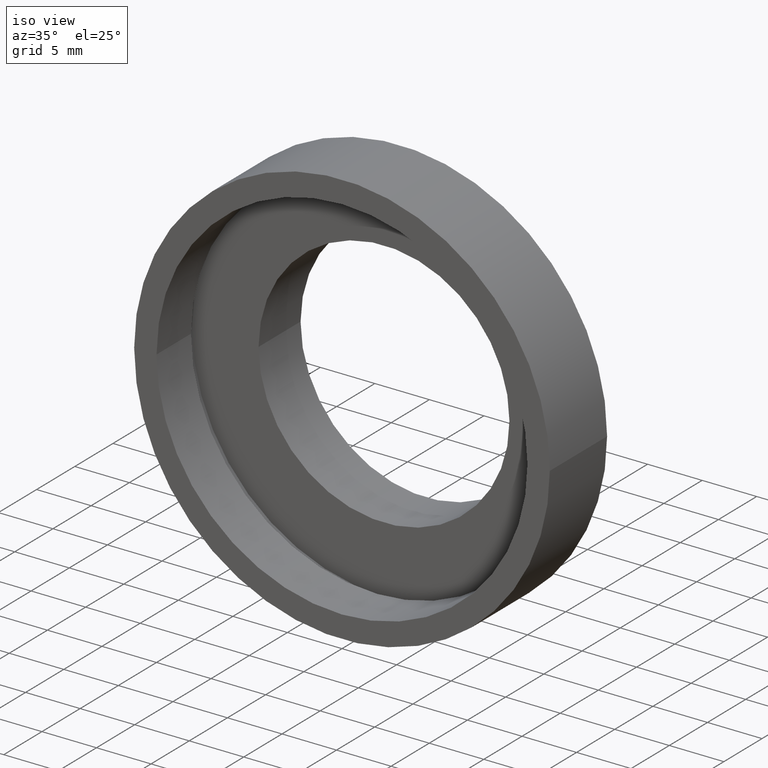
[diagram: clean part render]
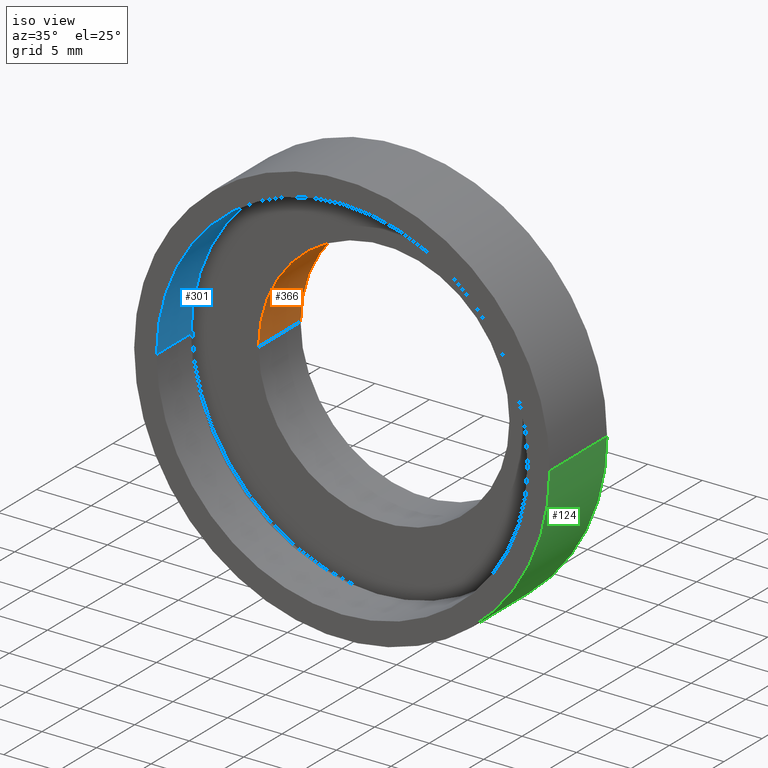
[diagram: same view with three faces highlighted in distinct colors, each labeled with its STEP entity id]
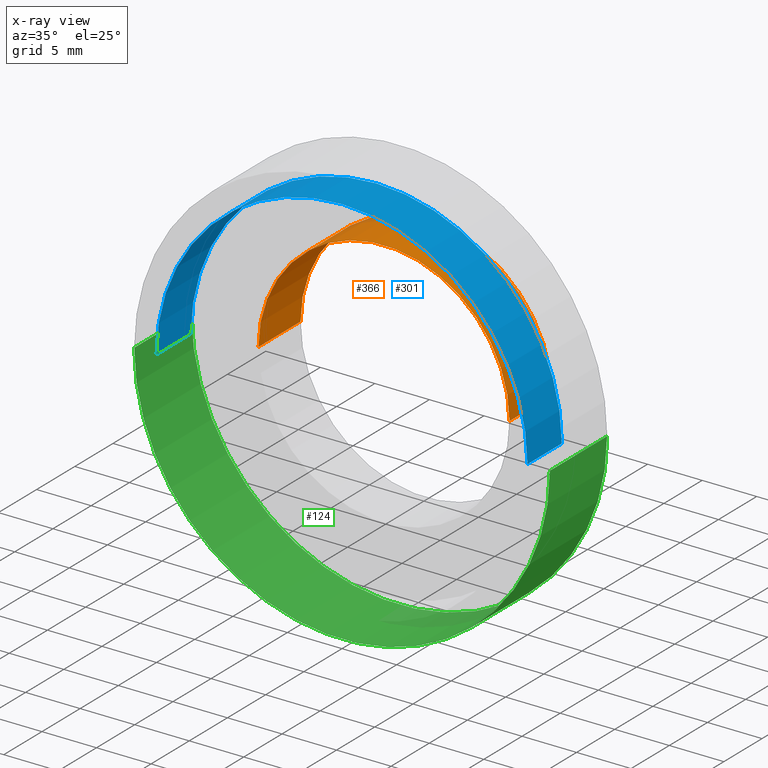
[diagram: x-ray of the same camera — body ghosted, the three highlighted faces saturated]
A machine part, iso view with three faces highlighted in distinct colors.
The next image is the same camera in x-ray (body ghosted, the three faces saturated) — at least one of them is partly hidden behind the body in this view.
Their STEP definitions:

[orange] entity #366 — the highlighted cylindrical surface (partial cylindrical patch) has radius 11.5 mm, axis along (-0, 1, -0).
#19 = VECTOR ( 'NONE', #251, 1000.000000000000000 ) ;
#42 = VERTEX_POINT ( 'NONE', #609 ) ;
#67 = AXIS2_PLACEMENT_3D ( 'NONE', #597, #589, #400 ) ;
#79 = DIRECTION ( 'NONE',  ( -1.224646799147351000E-016, 1.000000000000000000, -0.0000000000000000000 ) ) ;
#80 = EDGE_CURVE ( 'NONE', #42, #178, #607, .T. ) ;
#98 = AXIS2_PLACEMENT_3D ( 'NONE', #149, #526, #569 ) ;
#101 = EDGE_CURVE ( 'NONE', #275, #42, #223, .T. ) ;
#139 = CIRCLE ( 'NONE', #208, 11.50000000000000200 ) ;
#149 = CARTESIAN_POINT ( 'NONE',  ( 1.394385078907593000E-015, 5.499999999999998200, 0.0000000000000000000 ) ) ;
#159 = DIRECTION ( 'NONE',  ( -1.000000000000000000, -1.508455196501571200E-016, 0.0000000000000000000 ) ) ;
#178 = VERTEX_POINT ( 'NONE', #279 ) ;
#201 = ORIENTED_EDGE ( 'NONE', *, *, #101, .F. ) ;
#202 = FACE_OUTER_BOUND ( 'NONE', #448, .T. ) ;
#206 = DIRECTION ( 'NONE',  ( -1.224646799147351000E-016, 1.000000000000000000, -0.0000000000000000000 ) ) ;
#208 = AXIS2_PLACEMENT_3D ( 'NONE', #544, #206, #159 ) ;
#223 = CIRCLE ( 'NONE', #98, 11.50000000000000000 ) ;
#251 = DIRECTION ( 'NONE',  ( -1.224646799147351000E-016, 1.000000000000000000, -0.0000000000000000000 ) ) ;
#265 = LINE ( 'NONE', #502, #19 ) ;
#269 = VERTEX_POINT ( 'NONE', #492 ) ;
#275 = VERTEX_POINT ( 'NONE', #579 ) ;
#279 = CARTESIAN_POINT ( 'NONE',  ( 11.50000000000000200, 10.99999999999999800, 1.408343819019456600E-015 ) ) ;
#296 = ORIENTED_EDGE ( 'NONE', *, *, #80, .F. ) ;
#326 = ORIENTED_EDGE ( 'NONE', *, *, #394, .T. ) ;
#366 = ADVANCED_FACE ( 'NONE', ( #202 ), #451, .F. ) ;
#371 = CARTESIAN_POINT ( 'NONE',  ( 11.50000000000000000, 16.88601823708207700, 1.408343819019456200E-015 ) ) ;
#394 = EDGE_CURVE ( 'NONE', #269, #178, #139, .T. ) ;
#400 = DIRECTION ( 'NONE',  ( -1.000000000000000000, 0.0000000000000000000, 0.0000000000000000000 ) ) ;
#448 = EDGE_LOOP ( 'NONE', ( #296, #201, #582, #326 ) ) ;
#451 = CYLINDRICAL_SURFACE ( 'NONE', #67, 11.50000000000000000 ) ;
#487 = VECTOR ( 'NONE', #79, 1000.000000000000000 ) ;
#492 = CARTESIAN_POINT ( 'NONE',  ( -11.50000000000000200, 10.99999999999999500, 0.0000000000000000000 ) ) ;
#502 = CARTESIAN_POINT ( 'NONE',  ( -11.50000000000000000, 16.88601823708207700, 0.0000000000000000000 ) ) ;
#515 = EDGE_CURVE ( 'NONE', #275, #269, #265, .T. ) ;
#526 = DIRECTION ( 'NONE',  ( -1.224646799147351000E-016, 1.000000000000000000, -0.0000000000000000000 ) ) ;
#544 = CARTESIAN_POINT ( 'NONE',  ( 7.208293393765502500E-016, 10.99999999999999600, 0.0000000000000000000 ) ) ;
#569 = DIRECTION ( 'NONE',  ( -1.000000000000000000, -1.508455196501571400E-016, 0.0000000000000000000 ) ) ;
#579 = CARTESIAN_POINT ( 'NONE',  ( -11.49999999999999800, 5.499999999999996400, 0.0000000000000000000 ) ) ;
#582 = ORIENTED_EDGE ( 'NONE', *, *, #515, .T. ) ;
#589 = DIRECTION ( 'NONE',  ( -1.224646799147351000E-016, 1.000000000000000000, -0.0000000000000000000 ) ) ;
#597 = CARTESIAN_POINT ( 'NONE',  ( 0.0000000000000000000, 16.88601823708207700, 0.0000000000000000000 ) ) ;
#607 = LINE ( 'NONE', #371, #487 ) ;
#609 = CARTESIAN_POINT ( 'NONE',  ( 11.50000000000000200, 5.500000000000000000, 1.408343819019456600E-015 ) ) ;

[blue] entity #301 — the highlighted cylindrical surface (partial cylindrical patch) has radius 17 mm, axis along (-0, 1, -0).
#11 = CYLINDRICAL_SURFACE ( 'NONE', #414, 17.00000000000000000 ) ;
#15 = ORIENTED_EDGE ( 'NONE', *, *, #316, .T. ) ;
#18 = ORIENTED_EDGE ( 'NONE', *, *, #154, .F. ) ;
#94 = CARTESIAN_POINT ( 'NONE',  ( 1.516849758822328100E-015, 4.499999999999999100, 0.0000000000000000000 ) ) ;
#97 = CARTESIAN_POINT ( 'NONE',  ( 17.00000000000000400, -1.387547393403117700E-015, 2.081899558550500700E-015 ) ) ;
#118 = CARTESIAN_POINT ( 'NONE',  ( 2.067940818438636500E-015, -3.469446951953614200E-015, 0.0000000000000000000 ) ) ;
#154 = EDGE_CURVE ( 'NONE', #281, #344, #357, .T. ) ;
#170 = AXIS2_PLACEMENT_3D ( 'NONE', #94, #437, #390 ) ;
#171 = VERTEX_POINT ( 'NONE', #522 ) ;
#200 = ORIENTED_EDGE ( 'NONE', *, *, #580, .F. ) ;
#204 = EDGE_CURVE ( 'NONE', #171, #572, #538, .T. ) ;
#260 = CARTESIAN_POINT ( 'NONE',  ( -17.00000000000000400, 4.499999999999997300, 0.0000000000000000000 ) ) ;
#281 = VERTEX_POINT ( 'NONE', #97 ) ;
#301 = ADVANCED_FACE ( 'NONE', ( #584 ), #11, .F. ) ;
#310 = EDGE_LOOP ( 'NONE', ( #18, #200, #460, #15 ) ) ;
#316 = EDGE_CURVE ( 'NONE', #572, #344, #457, .T. ) ;
#322 = DIRECTION ( 'NONE',  ( -1.224646799147351000E-016, 1.000000000000000000, -0.0000000000000000000 ) ) ;
#323 = DIRECTION ( 'NONE',  ( -1.224646799147351000E-016, 1.000000000000000000, -0.0000000000000000000 ) ) ;
#330 = CARTESIAN_POINT ( 'NONE',  ( 0.0000000000000000000, 16.88601823708207700, 0.0000000000000000000 ) ) ;
#332 = DIRECTION ( 'NONE',  ( -1.000000000000000000, -2.040851148208008200E-016, 0.0000000000000000000 ) ) ;
#339 = VECTOR ( 'NONE', #323, 1000.000000000000000 ) ;
#344 = VERTEX_POINT ( 'NONE', #586 ) ;
#357 = LINE ( 'NONE', #568, #339 ) ;
#363 = DIRECTION ( 'NONE',  ( -1.224646799147351000E-016, 1.000000000000000000, -0.0000000000000000000 ) ) ;
#377 = AXIS2_PLACEMENT_3D ( 'NONE', #118, #363, #545 ) ;
#390 = DIRECTION ( 'NONE',  ( -1.000000000000000000, -1.020425574104004000E-016, 0.0000000000000000000 ) ) ;
#411 = VECTOR ( 'NONE', #322, 1000.000000000000000 ) ;
#414 = AXIS2_PLACEMENT_3D ( 'NONE', #330, #537, #332 ) ;
#437 = DIRECTION ( 'NONE',  ( -1.224646799147351000E-016, 1.000000000000000000, -0.0000000000000000000 ) ) ;
#457 = CIRCLE ( 'NONE', #170, 17.00000000000000400 ) ;
#460 = ORIENTED_EDGE ( 'NONE', *, *, #204, .T. ) ;
#480 = CARTESIAN_POINT ( 'NONE',  ( -17.00000000000000000, 16.88601823708207300, 0.0000000000000000000 ) ) ;
#522 = CARTESIAN_POINT ( 'NONE',  ( -16.99999999999999600, -5.551346510504111700E-015, 0.0000000000000000000 ) ) ;
#537 = DIRECTION ( 'NONE',  ( -1.224646799147351000E-016, 1.000000000000000000, -0.0000000000000000000 ) ) ;
#538 = LINE ( 'NONE', #480, #411 ) ;
#545 = DIRECTION ( 'NONE',  ( -1.000000000000000000, -1.224646799147351500E-016, 0.0000000000000000000 ) ) ;
#568 = CARTESIAN_POINT ( 'NONE',  ( 17.00000000000000000, 16.88601823708208000, 2.081899558550500300E-015 ) ) ;
#572 = VERTEX_POINT ( 'NONE', #260 ) ;
#580 = EDGE_CURVE ( 'NONE', #171, #281, #620, .T. ) ;
#584 = FACE_OUTER_BOUND ( 'NONE', #310, .T. ) ;
#586 = CARTESIAN_POINT ( 'NONE',  ( 17.00000000000000400, 4.500000000000000900, 2.081899558550500700E-015 ) ) ;
#620 = CIRCLE ( 'NONE', #377, 17.00000000000000000 ) ;

[green] entity #124 — the highlighted cylindrical surface (partial cylindrical patch) has radius 19.05 mm, axis along (-0, 1, -0).
#2 = EDGE_LOOP ( 'NONE', ( #591, #211, #199, #290 ) ) ;
#25 = CARTESIAN_POINT ( 'NONE',  ( 1.149455719078122700E-015, 7.499999999999998200, 0.0000000000000000000 ) ) ;
#58 = VERTEX_POINT ( 'NONE', #561 ) ;
#65 = AXIS2_PLACEMENT_3D ( 'NONE', #25, #421, #469 ) ;
#72 = CARTESIAN_POINT ( 'NONE',  ( 19.05000000000000100, 7.500000000000000900, 2.332952152375707600E-015 ) ) ;
#78 = CARTESIAN_POINT ( 'NONE',  ( 0.0000000000000000000, 16.88601823708207700, 0.0000000000000000000 ) ) ;
#91 = EDGE_CURVE ( 'NONE', #112, #590, #350, .T. ) ;
#112 = VERTEX_POINT ( 'NONE', #72 ) ;
#116 = EDGE_CURVE ( 'NONE', #58, #225, #161, .T. ) ;
#124 = ADVANCED_FACE ( 'NONE', ( #489 ), #229, .T. ) ;
#141 = CARTESIAN_POINT ( 'NONE',  ( -19.04999999999999400, -5.802399104329317500E-015, 0.0000000000000000000 ) ) ;
#161 = CIRCLE ( 'NONE', #605, 19.04999999999999700 ) ;
#199 = ORIENTED_EDGE ( 'NONE', *, *, #233, .T. ) ;
#211 = ORIENTED_EDGE ( 'NONE', *, *, #116, .T. ) ;
#225 = VERTEX_POINT ( 'NONE', #141 ) ;
#226 = VECTOR ( 'NONE', #410, 1000.000000000000000 ) ;
#229 = CYLINDRICAL_SURFACE ( 'NONE', #518, 19.04999999999999700 ) ;
#232 = DIRECTION ( 'NONE',  ( -1.224646799147351000E-016, 1.000000000000000000, -0.0000000000000000000 ) ) ;
#233 = EDGE_CURVE ( 'NONE', #225, #590, #575, .T. ) ;
#238 = DIRECTION ( 'NONE',  ( -1.000000000000000000, -1.224646799147351000E-016, 0.0000000000000000000 ) ) ;
#239 = DIRECTION ( 'NONE',  ( -1.224646799147351000E-016, 1.000000000000000000, -0.0000000000000000000 ) ) ;
#283 = LINE ( 'NONE', #359, #226 ) ;
#290 = ORIENTED_EDGE ( 'NONE', *, *, #91, .F. ) ;
#350 = CIRCLE ( 'NONE', #65, 19.05000000000000100 ) ;
#359 = CARTESIAN_POINT ( 'NONE',  ( 19.04999999999999700, 16.88601823708208000, 2.332952152375707300E-015 ) ) ;
#376 = CARTESIAN_POINT ( 'NONE',  ( 2.067940818438636500E-015, -3.469446951953614200E-015, 0.0000000000000000000 ) ) ;
#406 = CARTESIAN_POINT ( 'NONE',  ( -19.05000000000000100, 7.499999999999995600, 0.0000000000000000000 ) ) ;
#410 = DIRECTION ( 'NONE',  ( -1.224646799147351000E-016, 1.000000000000000000, -0.0000000000000000000 ) ) ;
#421 = DIRECTION ( 'NONE',  ( -1.224646799147351000E-016, 1.000000000000000000, -0.0000000000000000000 ) ) ;
#433 = DIRECTION ( 'NONE',  ( -1.000000000000000000, -1.821231995776175700E-016, 0.0000000000000000000 ) ) ;
#469 = DIRECTION ( 'NONE',  ( -1.000000000000000000, -1.365923996832131600E-016, 0.0000000000000000000 ) ) ;
#476 = VECTOR ( 'NONE', #239, 1000.000000000000000 ) ;
#489 = FACE_OUTER_BOUND ( 'NONE', #2, .T. ) ;
#518 = AXIS2_PLACEMENT_3D ( 'NONE', #78, #520, #433 ) ;
#520 = DIRECTION ( 'NONE',  ( -1.224646799147351000E-016, 1.000000000000000000, -0.0000000000000000000 ) ) ;
#528 = CARTESIAN_POINT ( 'NONE',  ( -19.04999999999999700, 16.88601823708207300, 0.0000000000000000000 ) ) ;
#561 = CARTESIAN_POINT ( 'NONE',  ( 19.05000000000000100, -1.136494799577911100E-015, 2.332952152375707600E-015 ) ) ;
#575 = LINE ( 'NONE', #528, #476 ) ;
#590 = VERTEX_POINT ( 'NONE', #406 ) ;
#591 = ORIENTED_EDGE ( 'NONE', *, *, #615, .F. ) ;
#605 = AXIS2_PLACEMENT_3D ( 'NONE', #376, #232, #238 ) ;
#615 = EDGE_CURVE ( 'NONE', #58, #112, #283, .T. ) ;